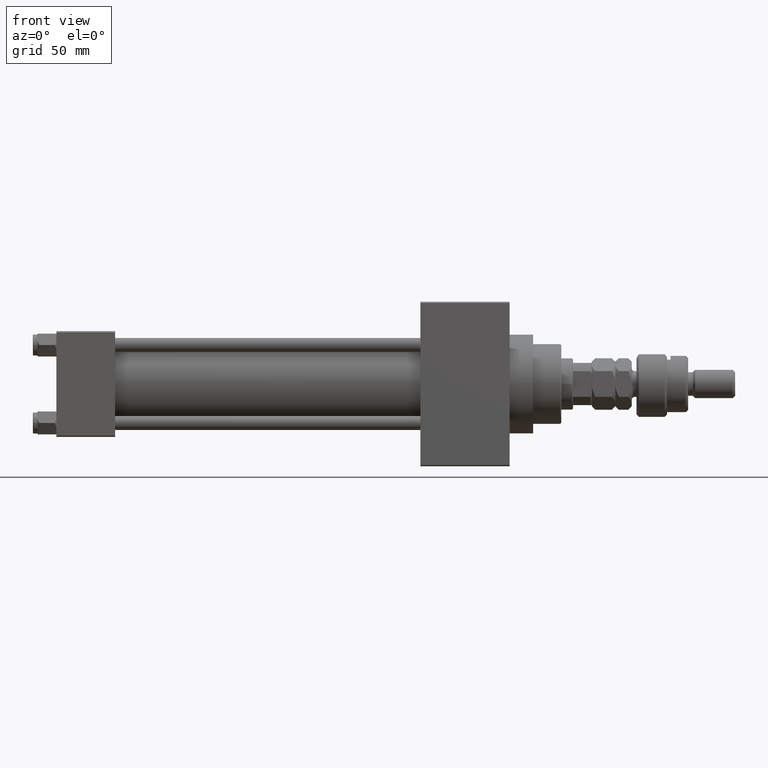
[diagram: clean part render]
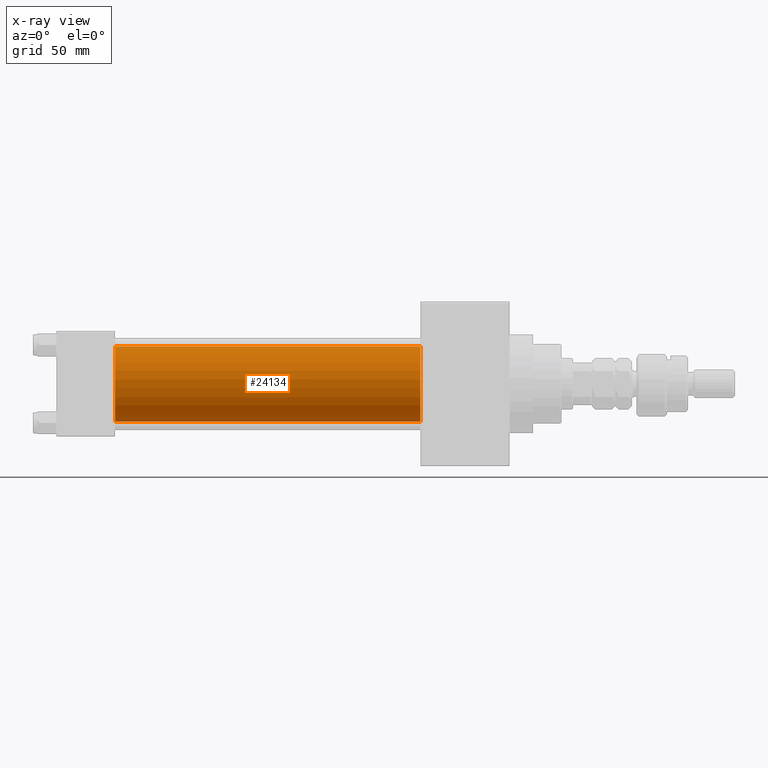
[diagram: x-ray — body ghosted, one internal face saturated and labeled with its STEP entity id]
A machine part, front view, then the same camera in x-ray: the body is ghosted and one INTERNAL B-rep face — a face not visible from any outside direction — is saturated and labeled: STEP entity #24134.
In plain terms, the highlighted cylindrical surface (partial cylindrical patch) has radius 16 mm, axis along (-1, -0, -0).
Its self-contained STEP definition (entity closure, byte-faithful):
#2049 = CARTESIAN_POINT ( 'NONE',  ( 25.00000000000000000, -6.426503353294456087E-16, -16.00000000000000000 ) ) ;
#3163 = ORIENTED_EDGE ( 'NONE', *, *, #38010, .T. ) ;
#6226 = DIRECTION ( 'NONE',  ( -1.000000000000000000, -0.000000000000000000, -0.000000000000000000 ) ) ;
#6271 = VECTOR ( 'NONE', #35355, 1000.000000000000000 ) ;
#8429 = DIRECTION ( 'NONE',  ( 1.000000000000000000, 0.000000000000000000, 0.000000000000000000 ) ) ;
#8746 = AXIS2_PLACEMENT_3D ( 'NONE', #45633, #6226, #42198 ) ;
#8935 = DIRECTION ( 'NONE',  ( 0.000000000000000000, 0.000000000000000000, -1.000000000000000000 ) ) ;
#11013 = CIRCLE ( 'NONE', #22763, 16.00000000000000000 ) ;
#11464 = LINE ( 'NONE', #19598, #6271 ) ;
#17582 = LINE ( 'NONE', #23729, #37991 ) ;
#18309 = FACE_OUTER_BOUND ( 'NONE', #29401, .T. ) ;
#18348 = CARTESIAN_POINT ( 'NONE',  ( 155.0000000000000000, -2.602085213965210642E-15, 0.000000000000000000 ) ) ;
#18967 = EDGE_CURVE ( 'NONE', #24921, #33147, #11013, .T. ) ;
#19598 = CARTESIAN_POINT ( 'NONE',  ( 155.0000000000000000, -6.426503353294456087E-16, -16.00000000000000000 ) ) ;
#20831 = ORIENTED_EDGE ( 'NONE', *, *, #18967, .F. ) ;
#22763 = AXIS2_PLACEMENT_3D ( 'NONE', #36526, #8429, #8935 ) ;
#23729 = CARTESIAN_POINT ( 'NONE',  ( 155.0000000000000000, -2.602085213965210642E-15, 16.00000000000000000 ) ) ;
#24134 = ADVANCED_FACE ( 'NONE', ( #18309 ), #25924, .F. ) ;
#24921 = VERTEX_POINT ( 'NONE', #46146 ) ;
#25329 = VERTEX_POINT ( 'NONE', #26812 ) ;
#25924 = CYLINDRICAL_SURFACE ( 'NONE', #8746, 16.00000000000000000 ) ;
#26433 = EDGE_CURVE ( 'NONE', #25329, #24921, #17582, .T. ) ;
#26812 = CARTESIAN_POINT ( 'NONE',  ( 155.0000000000000000, -2.602085213965210642E-15, 16.00000000000000000 ) ) ;
#29401 = EDGE_LOOP ( 'NONE', ( #3163, #47352, #20831, #41754 ) ) ;
#32944 = CIRCLE ( 'NONE', #39652, 16.00000000000000000 ) ;
#33147 = VERTEX_POINT ( 'NONE', #2049 ) ;
#34100 = DIRECTION ( 'NONE',  ( 1.000000000000000000, 0.000000000000000000, 0.000000000000000000 ) ) ;
#34634 = DIRECTION ( 'NONE',  ( 0.000000000000000000, 0.000000000000000000, -1.000000000000000000 ) ) ;
#35355 = DIRECTION ( 'NONE',  ( -1.000000000000000000, -0.000000000000000000, -0.000000000000000000 ) ) ;
#36526 = CARTESIAN_POINT ( 'NONE',  ( 25.00000000000000000, -2.602085213965210642E-15, 0.000000000000000000 ) ) ;
#37991 = VECTOR ( 'NONE', #48423, 1000.000000000000000 ) ;
#38010 = EDGE_CURVE ( 'NONE', #25329, #44925, #32944, .T. ) ;
#39652 = AXIS2_PLACEMENT_3D ( 'NONE', #18348, #34100, #34634 ) ;
#41754 = ORIENTED_EDGE ( 'NONE', *, *, #26433, .F. ) ;
#42198 = DIRECTION ( 'NONE',  ( 0.000000000000000000, 0.000000000000000000, 1.000000000000000000 ) ) ;
#44925 = VERTEX_POINT ( 'NONE', #47824 ) ;
#45633 = CARTESIAN_POINT ( 'NONE',  ( 155.0000000000000000, -2.602085213965210642E-15, 0.000000000000000000 ) ) ;
#46146 = CARTESIAN_POINT ( 'NONE',  ( 25.00000000000000000, -2.602085213965210642E-15, 16.00000000000000000 ) ) ;
#46467 = EDGE_CURVE ( 'NONE', #44925, #33147, #11464, .T. ) ;
#47352 = ORIENTED_EDGE ( 'NONE', *, *, #46467, .T. ) ;
#47824 = CARTESIAN_POINT ( 'NONE',  ( 155.0000000000000000, -6.426503353294456087E-16, -16.00000000000000000 ) ) ;
#48423 = DIRECTION ( 'NONE',  ( -1.000000000000000000, -0.000000000000000000, -0.000000000000000000 ) ) ;